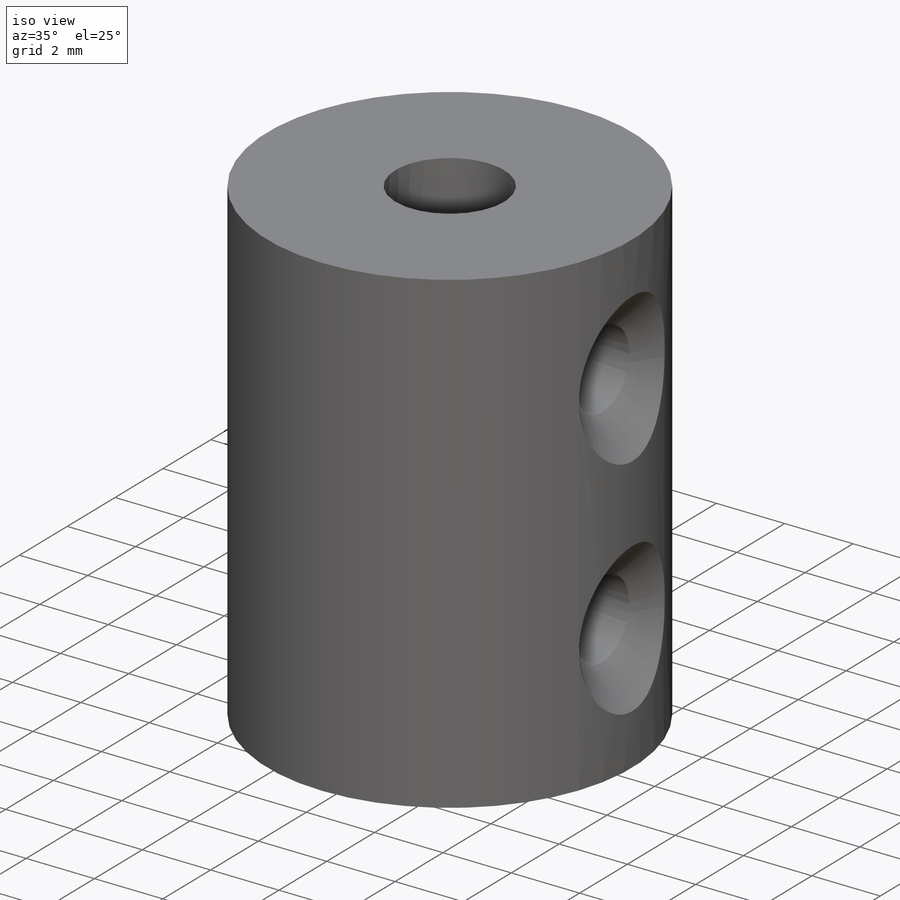
[diagram: iso view]
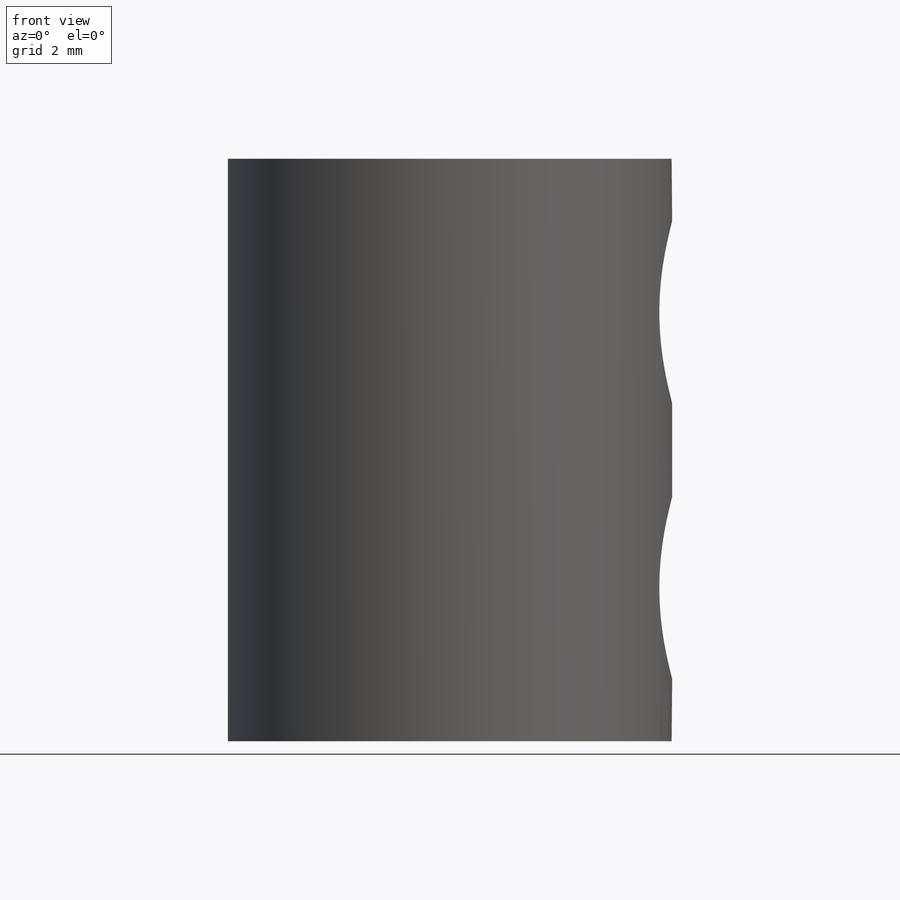
[diagram: front view]
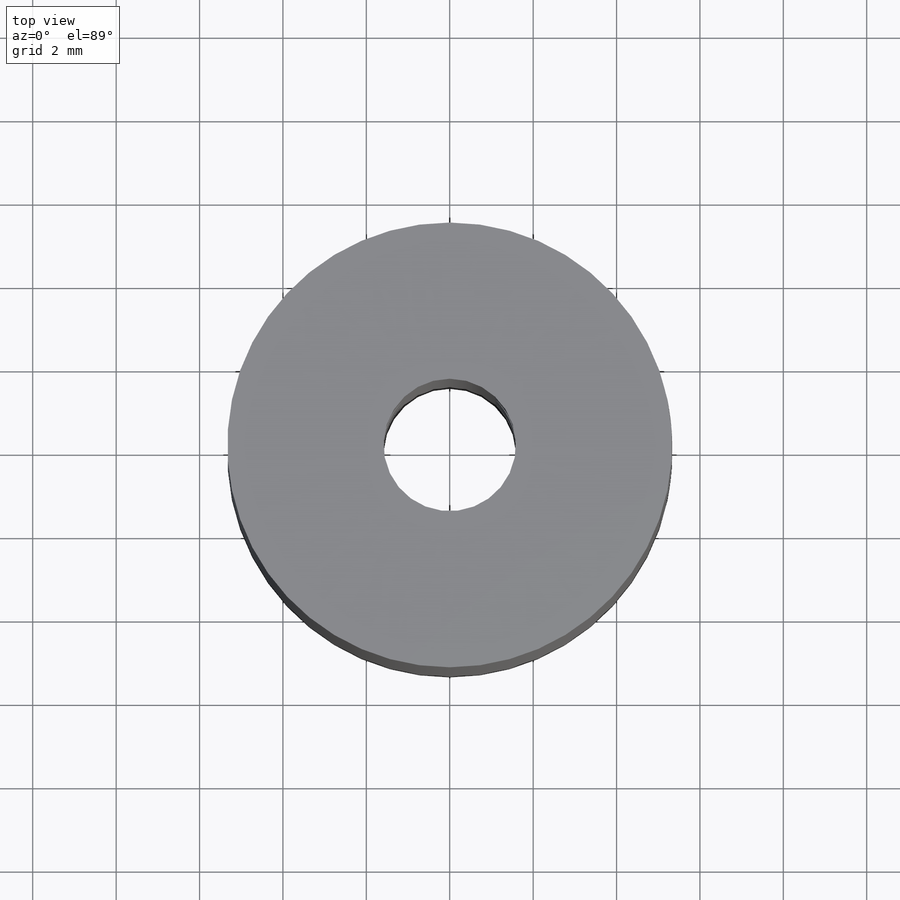
[diagram: top view]
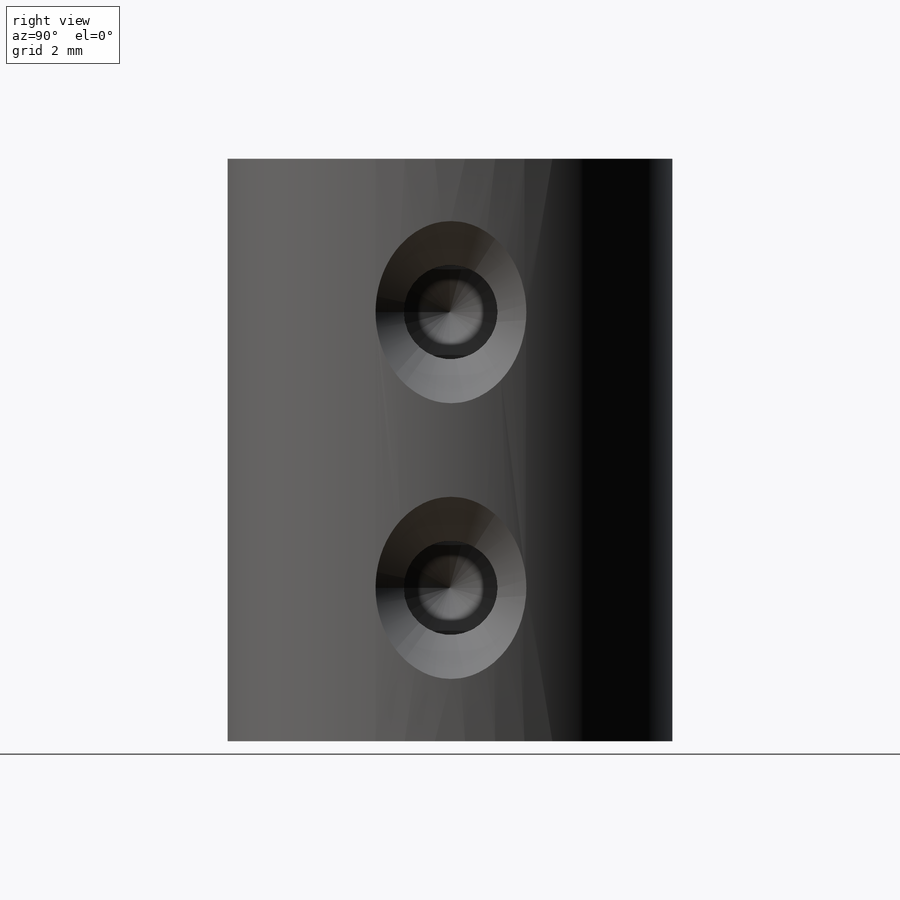
[diagram: right view]
SOLIDWORKS PART (.sldprt)
format: sldprt  version: not decoded by parser v0  size: 237,568 bytes
history: native  units: mm
features: sketch x5, plane x2, material x1, extrude x1, cut_extrude x1, hole x1, mirror x1 (+13 scaffold rows collapsed)
feature tree (25):
  scaffold x13  (default folders/planes/origin — collapsed)
  material  "Material <not specified>"
  sketch  "Sketch1"  dims[D1=~27.969191mm]
  extrude  "Boss-Extrude1"  Depth=13.97mm
  sketch  "Sketch2"  dims[D1=~1.44502mm]
  cut_extrude  "Cut-Extrude1"  [1 undecoded]
  plane  "Plane1"
  sketch  "Sketch3"  dims[D1=3.302mm]
  hole  "CSK for #2 Flat Head Machine Screw (100)2"  Diameter=2.2606mm Depth=6.858mm
  sketch  "3DSketch3"
  sketch  "Sketch6"  dims[hole-wizard template sketch: 39 standard entries collapsed; hole parameters kept: c13.Hole Dia.=2.2606mm c13.Hole Depth=6.858mm c13.Near C'Sink Dia.=4.3688mm c13.D4=~33.297463mm c13.Near C'Sink Angle=100.0deg c14.D5=~14.816244mm c14.Drill Angle=118.0deg]
  plane  "Plane3"  Offset=6.985mm
  mirror  "Mirror3"
decode coverage: 6 of 9 modeling features carry decoded parameters
note: ~ marks probable driven/reference dimensions
note: 1 parameter value undecoded
note: suppression state not decoded; provenance and decode notes live in map.json
